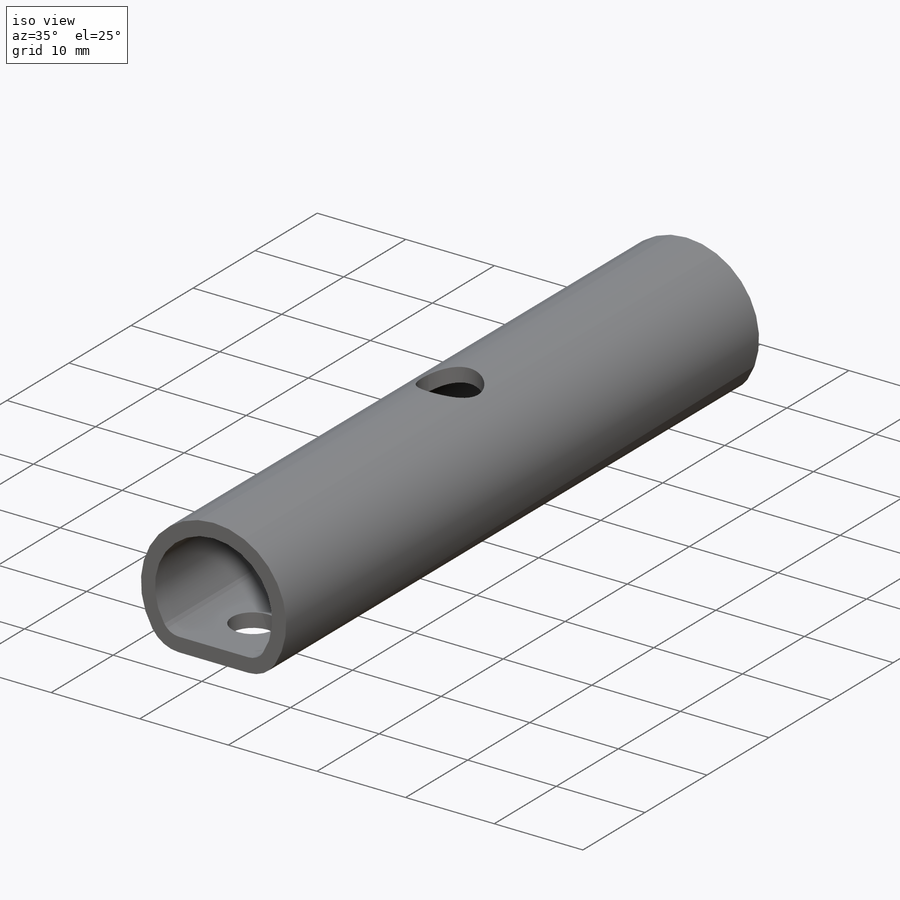
[diagram: iso view]
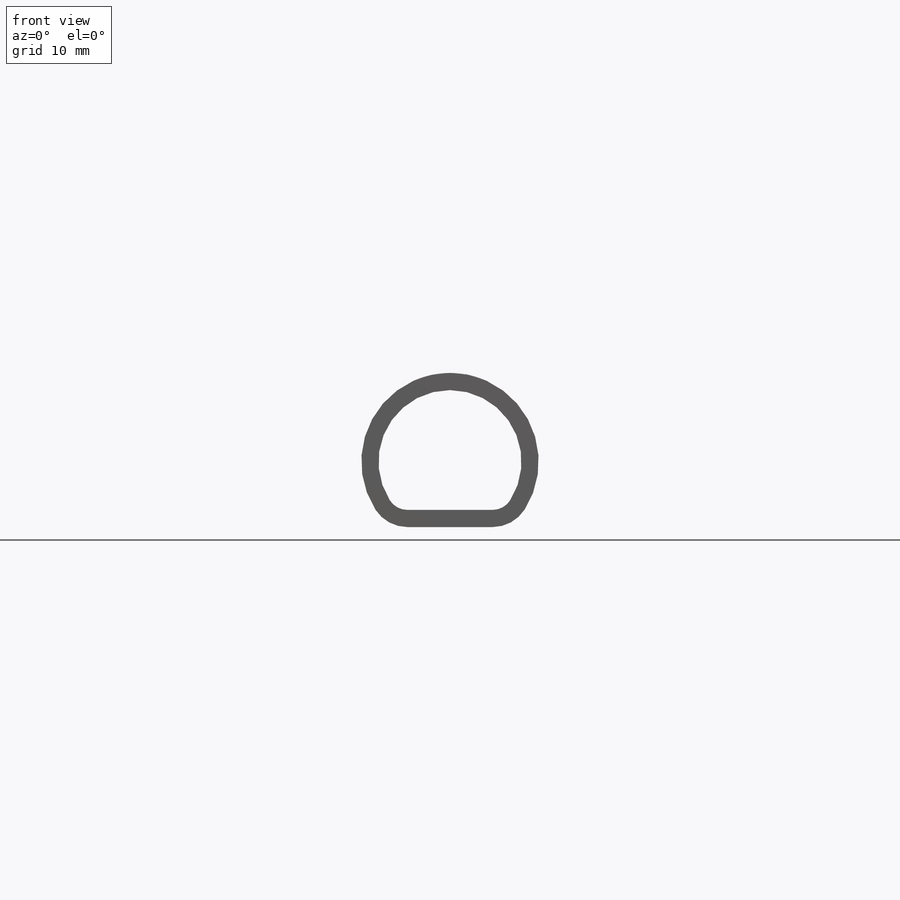
[diagram: front view]
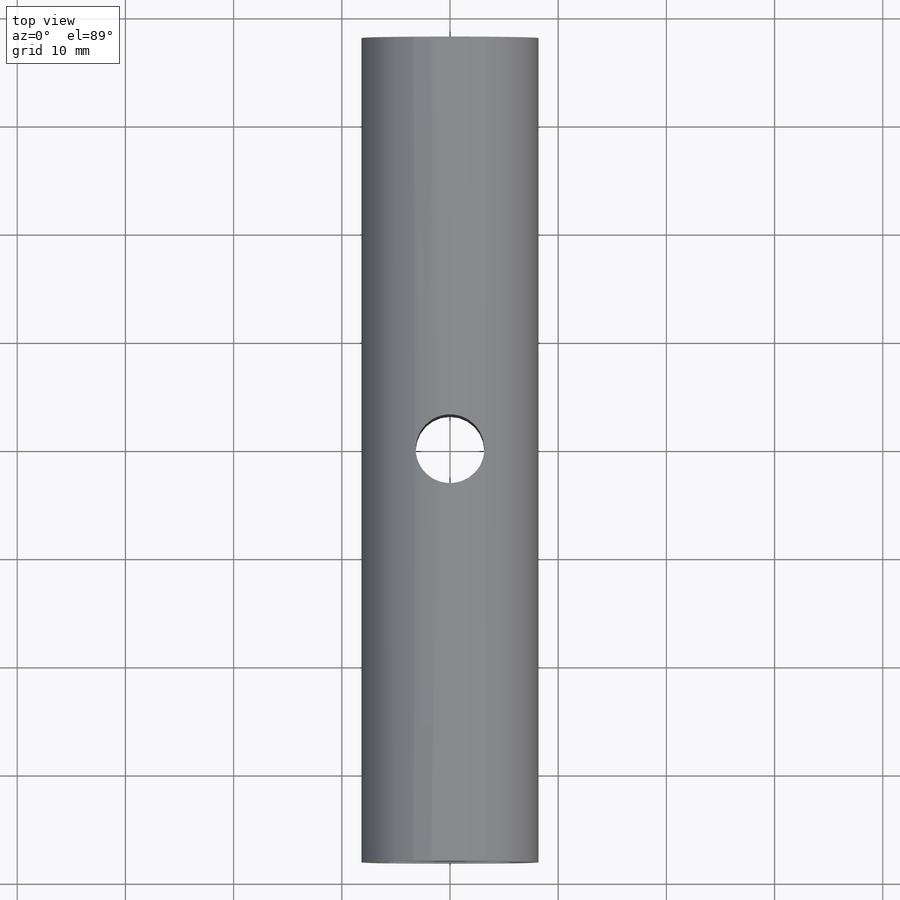
[diagram: top view]
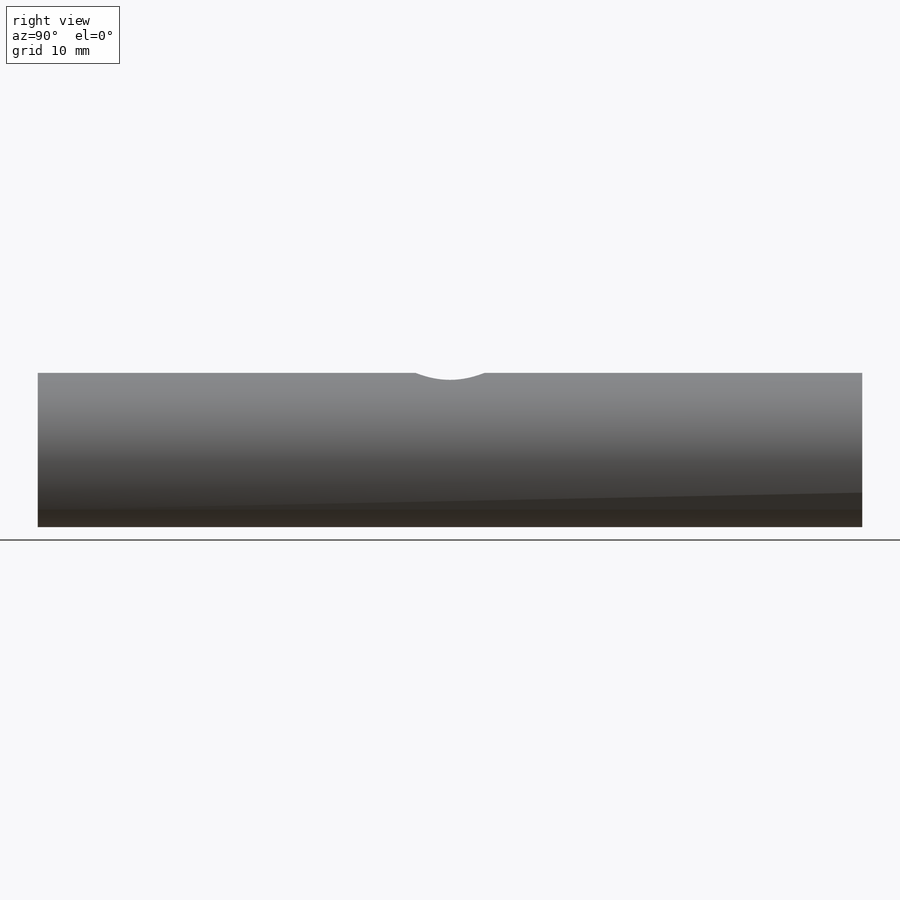
[diagram: right view]
SOLIDWORKS PART (.sldprt)
format: sldprt  version: not decoded by parser v0  size: 199,168 bytes
history: native  units: mm
features: sketch x6, hole x2, fillet x2, material x1, plane x1, extrude x1, cut_extrude x1 (+10 scaffold rows collapsed)
feature tree (24):
  scaffold x10  (default folders/planes/origin — collapsed)
  material  "Material <not specified>"
  plane  "Plane4"
  sketch  "Sketch1"
  extrude  "Boss-Extrude1"  Depth=76.2mm
  sketch  "Sketch2"
  cut_extrude  "Cut-Extrude1"  Depth=76.2mm
  hole  "M4 Clearance Hole1"  Diameter=4.7752mm Depth=1.5875mm
  sketch  "Sketch4"
  sketch  "Sketch3"  dims[hole-wizard template sketch: 59 standard entries collapsed; hole parameters kept: c18.Thru Hole Dia.=4.7752mm c18.Thru Hole Depth=1.5875mm]
  hole  "Hole1"  Diameter=6.35mm Depth=14.2494mm
  sketch  "3DSketch1"
  sketch  "Sketch5"  dims[Diameter=6.35mm Depth=14.2494mm]
  fillet  "Fillet1"  Radius=1.9304mm
  fillet  "Fillet2"  Radius=3.5179mm
decode coverage: 8 of 12 modeling features carry decoded parameters
note: ~ marks probable driven/reference dimensions
note: suppression state not decoded; provenance and decode notes live in map.json
